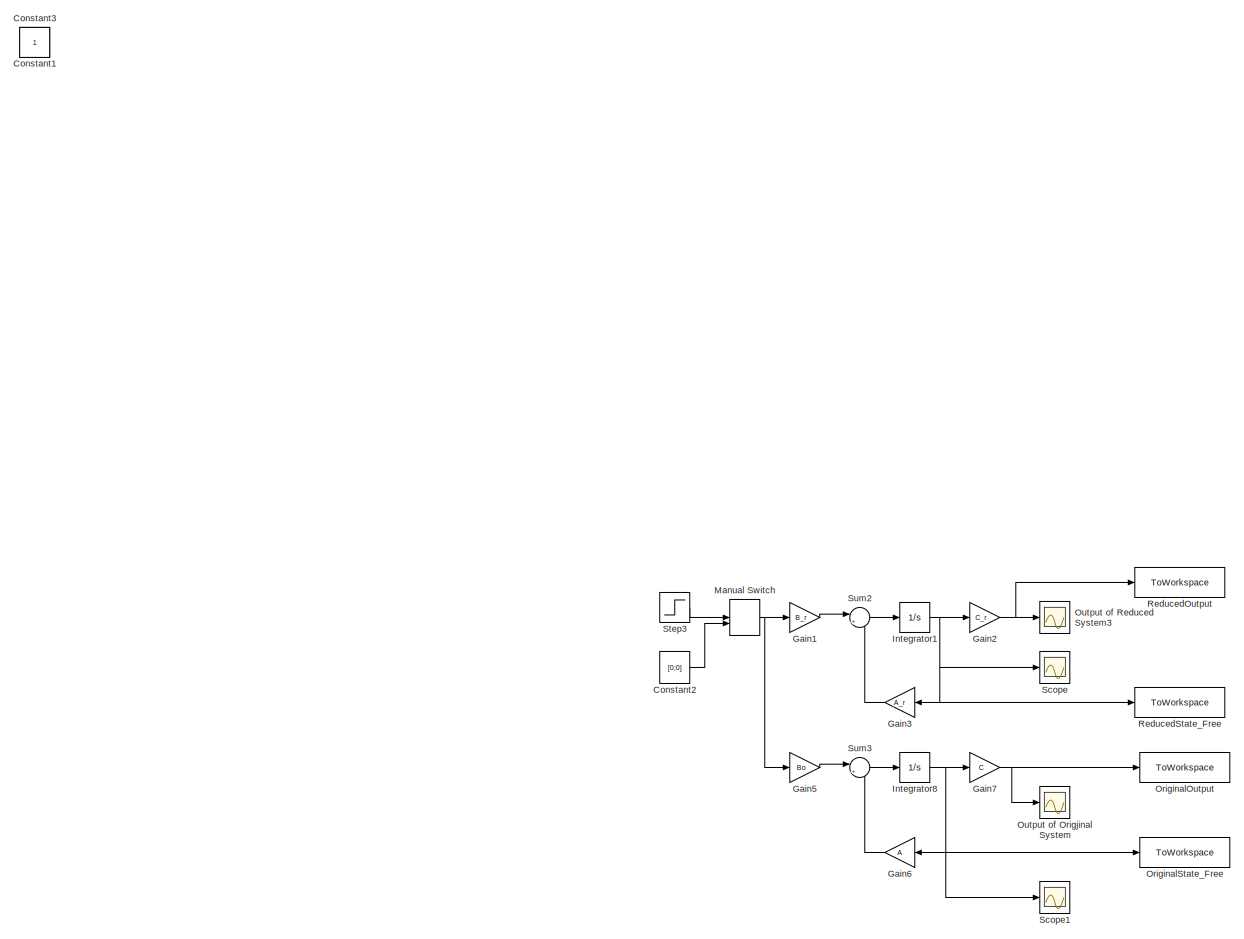
[diagram: root canvas - part 1/2, left side, full height]
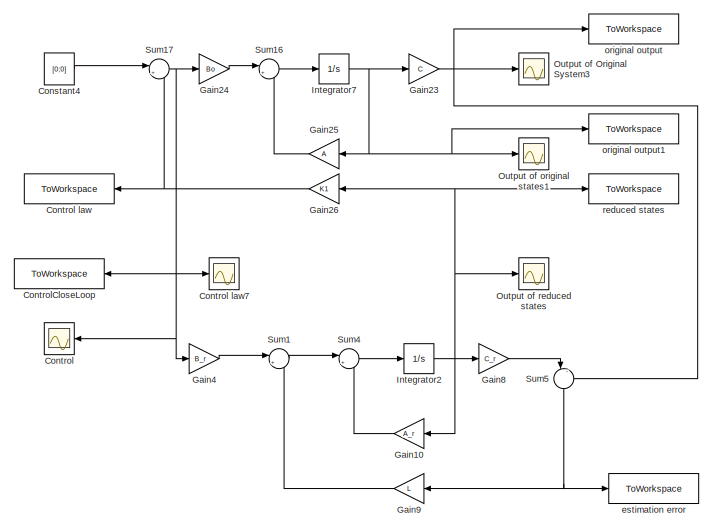
[diagram: root canvas - part 2/2, bottom right region]
MODEL slx_96c4a8b4ebd0
KIND model
CONFIG AbsTol = auto
CONFIG EnableMultiTasking = off
CONFIG FixedStep = 0.0001
CONFIG MaxStep = auto
CONFIG MinStep = auto
CONFIG RelTol = 1e-3
CONFIG SampleTimeConstraint = Unconstrained
CONFIG SolverName = ode1
CONFIG StartTime = 0.0
CONFIG StopTime = 20
BLOCK [Constant] Constant1
  IOType = siggen
BLOCK [Constant] Constant2
  SampleTime = 0.1
  Value = [0;0]
BLOCK [Constant] Constant3
  IOType = siggen
BLOCK [Constant] Constant4
  SampleTime = 0.1
  Value = [0;0]
BLOCK [Scope] Control 
  Floating = off
  NameLocation = top
  NumInputPorts = 1
  Ports = [1]
  ScopeSpecificationString = Simulink.scopes.TimeScopeBlockCfg('CurrentConfiguration', extmgr.ConfigurationSet(extmgr.Configuration('Core','General UI',true),extmgr.Configuration('Core','Source UI',true),extmgr.Configuration('Sources','WiredSimulink',true,'DataLoggingVariableName','ScopeData4'),extmgr.Configuration('Visuals','Time Domain',true,'SerializedDisplays',{struct('MinYLimReal','-30.66473','MaxYLimReal','27.67293','YL...<+1746ch>
BLOCK [ToWorkspace] Control law
  FixptAsFi = on
  MaxDataPoints = inf
  NameLocation = top
  Ports = [1]
  SampleTime = -1
  Save2DSignal = 2-D array (concatenate along first dimension)
  VariableName = ControlLaw1
BLOCK [Scope] Control law7
  Floating = off
  NumInputPorts = 1
  Ports = [1]
  ScopeSpecificationString = Simulink.scopes.TimeScopeBlockCfg('CurrentConfiguration', extmgr.ConfigurationSet(extmgr.Configuration('Core','General UI',true),extmgr.Configuration('Core','Source UI',true),extmgr.Configuration('Sources','WiredSimulink',true,'DataLoggingVariableName','ScopeData3'),extmgr.Configuration('Visuals','Time Domain',true,'SerializedDisplays',{struct('MinYLimReal','-2820.16173','MaxYLimReal','3188.40005'...<+1569ch>
BLOCK [ToWorkspace] ControlCloseLoop
  FixptAsFi = on
  MaxDataPoints = inf
  NameLocation = top
  Ports = [1]
  SampleTime = -1
  Save2DSignal = 2-D array (concatenate along first dimension)
  VariableName = ControlClosedLoop
BLOCK [Gain] Gain1
  Gain = B_r
  Multiplication = Matrix(K*u) (u vector)
BLOCK [Gain] Gain10
  Gain = A_r
  Multiplication = Matrix(K*u) (u vector)
  NameLocation = top
BLOCK [Gain] Gain2
  Gain = C_r
  Multiplication = Matrix(K*u) (u vector)
BLOCK [Gain] Gain23
  Gain = C
  Multiplication = Matrix(K*u) (u vector)
BLOCK [Gain] Gain24
  Gain = Bo
  Multiplication = Matrix(K*u) (u vector)
BLOCK [Gain] Gain25
  Gain = A
  Multiplication = Matrix(K*u) (u vector)
  NameLocation = top
BLOCK [Gain] Gain26
  Gain = K1
  Multiplication = Matrix(K*u)
  NameLocation = top
BLOCK [Gain] Gain3
  Gain = A_r
  Multiplication = Matrix(K*u) (u vector)
  NameLocation = top
BLOCK [Gain] Gain4
  Gain = B_r
  Multiplication = Matrix(K*u) (u vector)
BLOCK [Gain] Gain5
  Gain = Bo
  Multiplication = Matrix(K*u) (u vector)
BLOCK [Gain] Gain6
  Gain = A
  Multiplication = Matrix(K*u) (u vector)
  NameLocation = top
BLOCK [Gain] Gain7
  Gain = C
  Multiplication = Matrix(K*u) (u vector)
BLOCK [Gain] Gain8
  Gain = C_r
  Multiplication = Matrix(K*u) (u vector)
BLOCK [Gain] Gain9
  Gain = L
  Multiplication = Matrix(K*u) (u vector)
  NameLocation = top
BLOCK [Integrator] Integrator1
  InitialCondition = x_r
  Ports = [1, 1]
BLOCK [Integrator] Integrator2
  InitialCondition = x_r
  Ports = [1, 1]
BLOCK [Integrator] Integrator7
  InitialCondition = x_o
  Ports = [1, 1]
BLOCK [Integrator] Integrator8
  InitialCondition = x_o
  Ports = [1, 1]
BLOCK [ManualSwitch] Manual Switch
  CurrentSetting = 0
BLOCK [ToWorkspace] OriginalOutput
  FixptAsFi = on
  MaxDataPoints = inf
  Ports = [1]
  SampleTime = -1
  Save2DSignal = 2-D array (concatenate along first dimension)
  VariableName = OriginalOutput
BLOCK [ToWorkspace] OriginalState_Free
  FixptAsFi = on
  MaxDataPoints = inf
  Ports = [1]
  SampleTime = -1
  Save2DSignal = 2-D array (concatenate along first dimension)
  VariableName = OriginalStateFree
BLOCK [Scope] Output of Original System3
  Floating = off
  NumInputPorts = 1
  Ports = [1]
  ScopeSpecificationString = Simulink.scopes.TimeScopeBlockCfg('CurrentConfiguration', extmgr.ConfigurationSet(extmgr.Configuration('Core','General UI',true),extmgr.Configuration('Core','Source UI',true),extmgr.Configuration('Sources','WiredSimulink',true,'DataLoggingVariableName','ScopeData9'),extmgr.Configuration('Visuals','Time Domain',true,'SerializedDisplays',{struct('MinYLimReal','-0.26591','MaxYLimReal','0.26515','YLab...<+1482ch>
BLOCK [Scope] Output of Origjinal System
  Floating = off
  NumInputPorts = 1
  Ports = [1]
  ScopeSpecificationString = Simulink.scopes.TimeScopeBlockCfg('CurrentConfiguration', extmgr.ConfigurationSet(extmgr.Configuration('Core','General UI',true),extmgr.Configuration('Core','Source UI',true),extmgr.Configuration('Sources','WiredSimulink',true,'DataLoggingVariableName','ScopeData1'),extmgr.Configuration('Visuals','Time Domain',true,'SerializedDisplays',{struct('MinYLimReal','-0.24359','MaxYLimReal','0.23552','YLab...<+1482ch>
BLOCK [Scope] Output of Reduced System3
  Floating = off
  NumInputPorts = 1
  Ports = [1]
  ScopeSpecificationString = Simulink.scopes.TimeScopeBlockCfg('CurrentConfiguration', extmgr.ConfigurationSet(extmgr.Configuration('Core','General UI',true),extmgr.Configuration('Core','Source UI',true),extmgr.Configuration('Sources','WiredSimulink',true,'DataLoggingVariableName','ScopeData4'),extmgr.Configuration('Visuals','Time Domain',true,'SerializedDisplays',{struct('MinYLimReal','-0.50219','MaxYLimReal','0.57761','YLab...<+1484ch>
BLOCK [Scope] Output of original states1
  Floating = off
  NumInputPorts = 1
  Ports = [1]
  ScopeSpecificationString = Simulink.scopes.TimeScopeBlockCfg('CurrentConfiguration', extmgr.ConfigurationSet(extmgr.Configuration('Core','General UI',true),extmgr.Configuration('Core','Source UI',true),extmgr.Configuration('Sources','WiredSimulink',true,'DataLoggingVariableName','ScopeData3'),extmgr.Configuration('Visuals','Time Domain',true,'SerializedDisplays',{struct('MinYLimReal','-0.78443','MaxYLimReal','0.78253','YLab...<+1700ch>
BLOCK [Scope] Output of reduced states
  Floating = off
  NumInputPorts = 1
  Ports = [1]
  ScopeSpecificationString = Simulink.scopes.TimeScopeBlockCfg('CurrentConfiguration', extmgr.ConfigurationSet(extmgr.Configuration('Core','General UI',true),extmgr.Configuration('Core','Source UI',true),extmgr.Configuration('Sources','WiredSimulink',true,'DataLoggingVariableName','ScopeData1'),extmgr.Configuration('Visuals','Time Domain',true,'SerializedDisplays',{struct('MinYLimReal','-0.06684','MaxYLimReal','0.07816','YLab...<+1531ch>
BLOCK [ToWorkspace] ReducedOutput
  FixptAsFi = on
  MaxDataPoints = inf
  Ports = [1]
  SampleTime = -1
  Save2DSignal = 2-D array (concatenate along first dimension)
  VariableName = ReducedOutput
BLOCK [ToWorkspace] ReducedState_Free
  FixptAsFi = on
  MaxDataPoints = inf
  Ports = [1]
  SampleTime = -1
  Save2DSignal = 2-D array (concatenate along first dimension)
  VariableName = ReducedStateFree
BLOCK [Scope] Scope
  Floating = off
  NumInputPorts = 1
  Ports = [1]
  ScopeSpecificationString = Simulink.scopes.TimeScopeBlockCfg('CurrentConfiguration', extmgr.ConfigurationSet(extmgr.Configuration('Core','General UI',true),extmgr.Configuration('Core','Source UI',true),extmgr.Configuration('Sources','WiredSimulink',true,'DataLoggingVariableName','ScopeData1'),extmgr.Configuration('Visuals','Time Domain',true,'SerializedDisplays',{struct('MinYLimReal','-0.22462','MaxYLimReal','0.26555','YLab...<+1453ch>
BLOCK [Scope] Scope1
  Floating = off
  NumInputPorts = 1
  Ports = [1]
  ScopeSpecificationString = Simulink.scopes.TimeScopeBlockCfg('CurrentConfiguration', extmgr.ConfigurationSet(extmgr.Configuration('Core','General UI',true),extmgr.Configuration('Core','Source UI',true),extmgr.Configuration('Sources','WiredSimulink',true,'DataLoggingVariableName','ScopeData2'),extmgr.Configuration('Visuals','Time Domain',true,'SerializedDisplays',{struct('MinYLimReal','-5.30963','MaxYLimReal','5.26668','YLab...<+1676ch>
BLOCK [Step] Step3
  SampleTime = 0.01
  Time = [1;1]
BLOCK [Sum] Sum1
  Inputs = |++
  Ports = [2, 1]
BLOCK [Sum] Sum16
  Inputs = |++
  Ports = [2, 1]
BLOCK [Sum] Sum17
  Inputs = |+-
  Ports = [2, 1]
BLOCK [Sum] Sum2
  Inputs = |++
  Ports = [2, 1]
BLOCK [Sum] Sum3
  Inputs = |++
  Ports = [2, 1]
BLOCK [Sum] Sum4
  Inputs = |++
  Ports = [2, 1]
BLOCK [Sum] Sum5
  Inputs = |-+
  NameLocation = left
  Ports = [2, 1]
BLOCK [ToWorkspace] estimation error
  FixptAsFi = on
  MaxDataPoints = inf
  Ports = [1]
  SampleTime = -1
  Save2DSignal = 2-D array (concatenate along first dimension)
  VariableName = estimation_error
BLOCK [ToWorkspace] original output
  FixptAsFi = on
  MaxDataPoints = inf
  Ports = [1]
  SampleTime = -1
  Save2DSignal = 2-D array (concatenate along first dimension)
  VariableName = y_ori
BLOCK [ToWorkspace] original output1
  FixptAsFi = on
  MaxDataPoints = inf
  Ports = [1]
  SampleTime = -1
  Save2DSignal = 2-D array (concatenate along first dimension)
  VariableName = x_ori
BLOCK [ToWorkspace] reduced states
  FixptAsFi = on
  MaxDataPoints = inf
  Ports = [1]
  SampleTime = -1
  Save2DSignal = 2-D array (concatenate along first dimension)
  VariableName = x_red
LINE Constant2:1 -> Manual Switch:2
LINE Constant4:1 -> Sum17:1
LINE Gain10:1 -> Sum4:2
LINE Gain1:1 -> Sum2:1
NET Gain23:1 -> Output of Original System3:1, Sum5:2, original output:1
LINE Gain24:1 -> Sum16:1
LINE Gain25:1 -> Sum16:2
NET Gain26:1 -> Control law:1, Sum17:2
NET Gain2:1 -> Output of Reduced System3:1, ReducedOutput:1
LINE Gain3:1 -> Sum2:2
LINE Gain4:1 -> Sum1:1
LINE Gain5:1 -> Sum3:1
LINE Gain6:1 -> Sum3:2
NET Gain7:1 -> OriginalOutput:1, Output of Origjinal System:1
LINE Gain8:1 -> Sum5:1
LINE Gain9:1 -> Sum1:2
NET Integrator1:1 -> Gain2:1, Gain3:1, ReducedState_Free:1, Scope:1
NET Integrator2:1 -> Gain10:1, Gain26:1, Gain8:1, Output of reduced states:1, reduced states:1
NET Integrator7:1 -> Gain23:1, Gain25:1, Output of original states1:1, original output1:1
NET Integrator8:1 -> Gain6:1, Gain7:1, OriginalState_Free:1, Scope1:1
NET Manual Switch:1 -> Gain1:1, Gain5:1
LINE Step3:1 -> Manual Switch:1
LINE Sum16:1 -> Integrator7:1
NET Sum17:1 -> Control :1, Control law7:1, ControlCloseLoop:1, Gain24:1, Gain4:1
LINE Sum1:1 -> Sum4:1
LINE Sum2:1 -> Integrator1:1
LINE Sum3:1 -> Integrator8:1
LINE Sum4:1 -> Integrator2:1
NET Sum5:1 -> Gain9:1, estimation error:1
note: NET lines group one-source signal fan-out (src -> all destinations, sorted); 1:1 wires keep LINE
